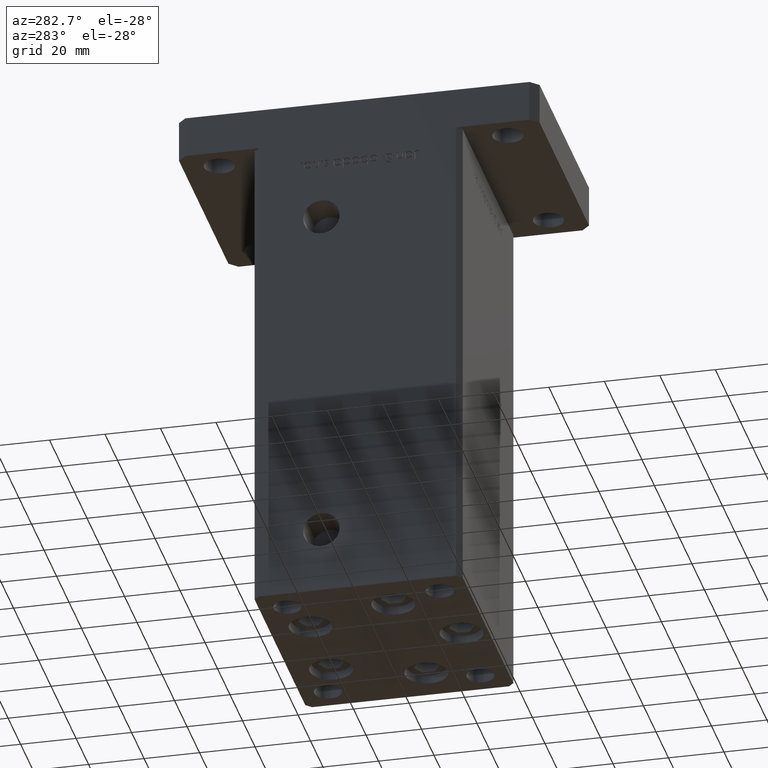
[diagram: clean part render]
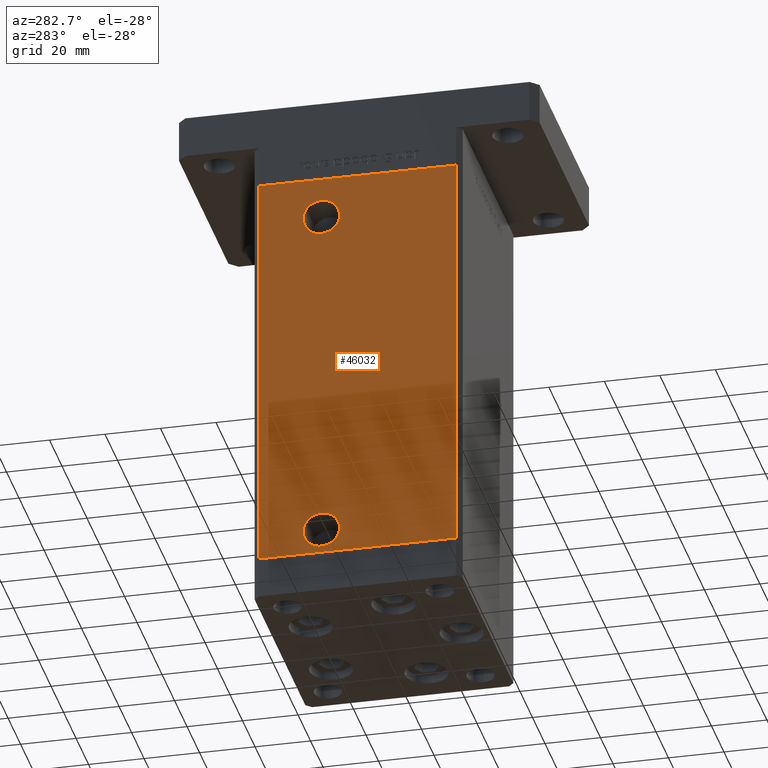
[diagram: same view with one face highlighted and labeled with its STEP entity id]
A machine part, auxiliary view. The second image highlights one B-rep face of the part: STEP entity #46032.
In plain terms, the highlighted planar face has unit normal (1, 0, 0).
Its self-contained STEP definition (entity closure, byte-faithful):
#670 = EDGE_LOOP ( 'NONE', ( #3044, #885 ) ) ;
#735 = DIRECTION ( 'NONE',  ( -1.000000000000000000, -2.275047181608927644E-16, 0.000000000000000000 ) ) ;
#885 = ORIENTED_EDGE ( 'NONE', *, *, #21043, .F. ) ;
#1634 = VERTEX_POINT ( 'NONE', #44497 ) ;
#1681 = CIRCLE ( 'NONE', #41513, 6.580000000000003624 ) ;
#3044 = ORIENTED_EDGE ( 'NONE', *, *, #32118, .F. ) ;
#3150 = FACE_OUTER_BOUND ( 'NONE', #4301, .T. ) ;
#4301 = EDGE_LOOP ( 'NONE', ( #47379, #17953, #35895, #52645 ) ) ;
#4527 = DIRECTION ( 'NONE',  ( 0.000000000000000000, -1.000000000000000000, 0.000000000000000000 ) ) ;
#4573 = VECTOR ( 'NONE', #34799, 1000.000000000000000 ) ;
#6453 = DIRECTION ( 'NONE',  ( -1.000000000000000000, -2.275047181608927644E-16, 0.000000000000000000 ) ) ;
#6748 = EDGE_CURVE ( 'NONE', #28639, #9383, #50316, .T. ) ;
#7627 = CIRCLE ( 'NONE', #44858, 6.580000000000003624 ) ;
#9383 = VERTEX_POINT ( 'NONE', #43176 ) ;
#10147 = DIRECTION ( 'NONE',  ( -1.000000000000000000, -2.275047181608927644E-16, 0.000000000000000000 ) ) ;
#10352 = EDGE_CURVE ( 'NONE', #49666, #28639, #43215, .T. ) ;
#10426 = CARTESIAN_POINT ( 'NONE',  ( -42.49999999999999289, 13.00000000000000000, 133.5000000000000000 ) ) ;
#11255 = DIRECTION ( 'NONE',  ( -0.000000000000000000, -0.000000000000000000, -1.000000000000000000 ) ) ;
#12304 = LINE ( 'NONE', #19908, #30010 ) ;
#12973 = VERTEX_POINT ( 'NONE', #48631 ) ;
#14491 = DIRECTION ( 'NONE',  ( 0.000000000000000000, -1.000000000000000000, 0.000000000000000000 ) ) ;
#16132 = PLANE ( 'NONE',  #17927 ) ;
#17927 = AXIS2_PLACEMENT_3D ( 'NONE', #32664, #49206, #19675 ) ;
#17953 = ORIENTED_EDGE ( 'NONE', *, *, #25527, .F. ) ;
#18043 = CARTESIAN_POINT ( 'NONE',  ( -42.50000000000000711, 35.50000000000001421, 0.000000000000000000 ) ) ;
#19675 = DIRECTION ( 'NONE',  ( -2.931927001650941360E-16, 1.000000000000000000, 0.000000000000000000 ) ) ;
#19908 = CARTESIAN_POINT ( 'NONE',  ( -42.49999999999998579, -35.50000000000000711, 148.5000000000000000 ) ) ;
#20102 = CARTESIAN_POINT ( 'NONE',  ( -42.50000000000000711, 35.50000000000001421, 0.000000000000000000 ) ) ;
#21043 = EDGE_CURVE ( 'NONE', #44195, #36213, #28283, .T. ) ;
#21324 = CARTESIAN_POINT ( 'NONE',  ( -42.49999999999999289, 13.00000000000000000, 9.000000000000007105 ) ) ;
#21806 = DIRECTION ( 'NONE',  ( 0.000000000000000000, -1.000000000000000000, 0.000000000000000000 ) ) ;
#23323 = CARTESIAN_POINT ( 'NONE',  ( -42.50000000000000711, 35.50000000000001421, 148.5000000000000000 ) ) ;
#24264 = FACE_BOUND ( 'NONE', #39004, .T. ) ;
#25268 = VECTOR ( 'NONE', #46789, 1000.000000000000000 ) ;
#25527 = EDGE_CURVE ( 'NONE', #1634, #9383, #12304, .T. ) ;
#27691 = CARTESIAN_POINT ( 'NONE',  ( -42.49999999999999289, 19.58000000000001251, 133.5000000000000000 ) ) ;
#28064 = FACE_BOUND ( 'NONE', #670, .T. ) ;
#28283 = CIRCLE ( 'NONE', #30739, 6.580000000000015170 ) ;
#28454 = DIRECTION ( 'NONE',  ( 2.931927001650941360E-16, -1.000000000000000000, 0.000000000000000000 ) ) ;
#28639 = VERTEX_POINT ( 'NONE', #20102 ) ;
#28984 = LINE ( 'NONE', #37929, #43685 ) ;
#30010 = VECTOR ( 'NONE', #11255, 1000.000000000000000 ) ;
#30739 = AXIS2_PLACEMENT_3D ( 'NONE', #10426, #46765, #14491 ) ;
#31564 = ORIENTED_EDGE ( 'NONE', *, *, #52748, .F. ) ;
#32118 = EDGE_CURVE ( 'NONE', #36213, #44195, #50527, .T. ) ;
#32664 = CARTESIAN_POINT ( 'NONE',  ( -42.50000000000000711, 35.50000000000001421, 148.5000000000000000 ) ) ;
#33231 = AXIS2_PLACEMENT_3D ( 'NONE', #47373, #6453, #39530 ) ;
#34216 = EDGE_CURVE ( 'NONE', #49666, #1634, #28984, .T. ) ;
#34799 = DIRECTION ( 'NONE',  ( -0.000000000000000000, -0.000000000000000000, -1.000000000000000000 ) ) ;
#35607 = CARTESIAN_POINT ( 'NONE',  ( -42.50000000000000711, 35.50000000000001421, 148.5000000000000000 ) ) ;
#35895 = ORIENTED_EDGE ( 'NONE', *, *, #34216, .F. ) ;
#36213 = VERTEX_POINT ( 'NONE', #44876 ) ;
#37929 = CARTESIAN_POINT ( 'NONE',  ( -42.50000000000000711, 35.50000000000001421, 148.5000000000000000 ) ) ;
#39004 = EDGE_LOOP ( 'NONE', ( #31564, #43052 ) ) ;
#39530 = DIRECTION ( 'NONE',  ( 0.000000000000000000, -1.000000000000000000, 0.000000000000000000 ) ) ;
#40146 = VERTEX_POINT ( 'NONE', #50626 ) ;
#41513 = AXIS2_PLACEMENT_3D ( 'NONE', #21324, #735, #4527 ) ;
#42950 = CARTESIAN_POINT ( 'NONE',  ( -42.49999999999999289, 13.00000000000000000, 9.000000000000007105 ) ) ;
#43052 = ORIENTED_EDGE ( 'NONE', *, *, #43145, .F. ) ;
#43145 = EDGE_CURVE ( 'NONE', #40146, #12973, #7627, .T. ) ;
#43176 = CARTESIAN_POINT ( 'NONE',  ( -42.49999999999998579, -35.50000000000000711, 0.000000000000000000 ) ) ;
#43215 = LINE ( 'NONE', #35607, #4573 ) ;
#43685 = VECTOR ( 'NONE', #28454, 1000.000000000000000 ) ;
#44195 = VERTEX_POINT ( 'NONE', #27691 ) ;
#44497 = CARTESIAN_POINT ( 'NONE',  ( -42.49999999999998579, -35.50000000000000711, 148.5000000000000000 ) ) ;
#44858 = AXIS2_PLACEMENT_3D ( 'NONE', #42950, #10147, #21806 ) ;
#44876 = CARTESIAN_POINT ( 'NONE',  ( -42.49999999999999289, 6.419999999999983942, 133.5000000000000000 ) ) ;
#46032 = ADVANCED_FACE ( 'NONE', ( #24264, #28064, #3150 ), #16132, .F. ) ;
#46765 = DIRECTION ( 'NONE',  ( -1.000000000000000000, -2.275047181608927644E-16, 0.000000000000000000 ) ) ;
#46789 = DIRECTION ( 'NONE',  ( 2.931927001650941360E-16, -1.000000000000000000, 0.000000000000000000 ) ) ;
#47373 = CARTESIAN_POINT ( 'NONE',  ( -42.49999999999999289, 13.00000000000000000, 133.5000000000000000 ) ) ;
#47379 = ORIENTED_EDGE ( 'NONE', *, *, #6748, .T. ) ;
#48631 = CARTESIAN_POINT ( 'NONE',  ( -42.49999999999999289, 6.419999999999996376, 9.000000000000007105 ) ) ;
#49206 = DIRECTION ( 'NONE',  ( 1.000000000000000000, 2.931927001650941360E-16, -0.000000000000000000 ) ) ;
#49666 = VERTEX_POINT ( 'NONE', #23323 ) ;
#50316 = LINE ( 'NONE', #18043, #25268 ) ;
#50527 = CIRCLE ( 'NONE', #33231, 6.580000000000015170 ) ;
#50626 = CARTESIAN_POINT ( 'NONE',  ( -42.49999999999999289, 19.58000000000000540, 9.000000000000007105 ) ) ;
#52645 = ORIENTED_EDGE ( 'NONE', *, *, #10352, .T. ) ;
#52748 = EDGE_CURVE ( 'NONE', #12973, #40146, #1681, .T. ) ;